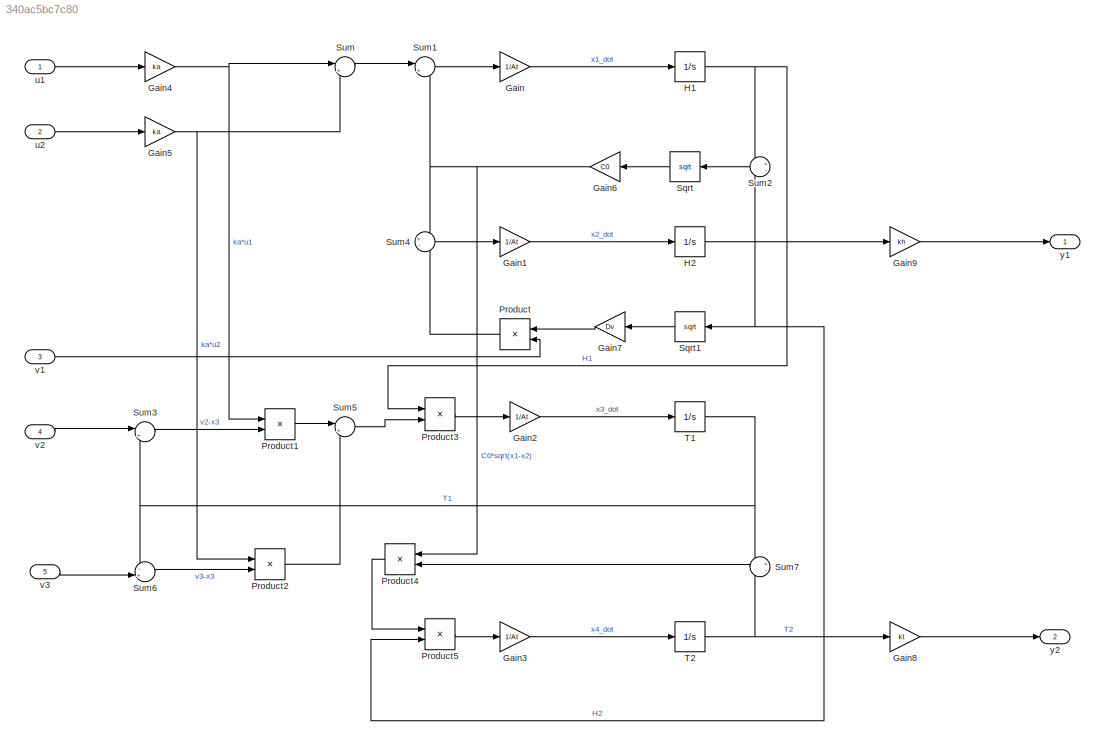
MODEL slx_340ac5bc7c80
KIND model
CONFIG AbsTol = auto
CONFIG EnableMultiTasking = off
CONFIG FixedStep = STEP_SIZE
CONFIG MaxStep = auto
CONFIG MinStep = auto
CONFIG RelTol = 1e-3
CONFIG SampleTimeConstraint = Unconstrained
CONFIG SolverName = ode4
CONFIG StartTime = 0.0
CONFIG StopTime = SIM_TIME
BLOCK [Gain] Gain
  Gain = 1/At
BLOCK [Gain] Gain1
  Gain = 1/At
BLOCK [Gain] Gain2
  Gain = 1/At
BLOCK [Gain] Gain3
  Gain = 1/At
BLOCK [Gain] Gain4
  Gain = ka
BLOCK [Gain] Gain5
  Gain = ka
BLOCK [Gain] Gain6
  Gain = C0
  NameLocation = top
BLOCK [Gain] Gain7
  Gain = Dv
  NameLocation = top
BLOCK [Gain] Gain8
  Gain = kt
BLOCK [Gain] Gain9
  Gain = kh
BLOCK [Integrator] H1
  InitialCondition = x0(1)
  LimitOutput = on
  LowerSaturationLimit = 0
  Ports = [1, 1]
  Priority = 1
BLOCK [Integrator] H2
  InitialCondition = x0(2)
  LimitOutput = on
  LowerSaturationLimit = 0
  Ports = [1, 1]
  Priority = 2
BLOCK [Product] Product
  NameLocation = top
  Ports = [2, 1]
BLOCK [Product] Product1
  Ports = [2, 1]
BLOCK [Product] Product2
  Ports = [2, 1]
BLOCK [Product] Product3
  Inputs = /*
  Ports = [2, 1]
BLOCK [Product] Product4
  NameLocation = top
  Ports = [2, 1]
BLOCK [Product] Product5
  Inputs = */
  Ports = [2, 1]
BLOCK [Sqrt] Sqrt
  NameLocation = top
BLOCK [Sqrt] Sqrt1
  NameLocation = top
BLOCK [Sum] Sum
  Inputs = |++
  Ports = [2, 1]
BLOCK [Sum] Sum1
  Inputs = |+-
  Ports = [2, 1]
BLOCK [Sum] Sum2
  Inputs = +-
  NameLocation = top
  Ports = [2, 1]
BLOCK [Sum] Sum3
  Inputs = |+-
  Ports = [2, 1]
BLOCK [Sum] Sum4
  Inputs = +-
  Ports = [2, 1]
BLOCK [Sum] Sum5
  Inputs = |++
  Ports = [2, 1]
BLOCK [Sum] Sum6
  Inputs = -+|
  Ports = [2, 1]
BLOCK [Sum] Sum7
  Inputs = +-
  NameLocation = top
  Ports = [2, 1]
BLOCK [Integrator] T1
  InitialCondition = x0(3)
  Ports = [1, 1]
  Priority = 3
BLOCK [Integrator] T2
  InitialCondition = x0(4)
  Ports = [1, 1]
  Priority = 4
BLOCK [Inport] u1
BLOCK [Inport] u2
  Port = 2
BLOCK [Inport] v1
  Port = 3
BLOCK [Inport] v2
  Port = 4
BLOCK [Inport] v3
  Port = 5
BLOCK [Outport] y1
BLOCK [Outport] y2
  Port = 2
LINE Gain1:1 -> H2:1
LINE Gain2:1 -> T1:1
LINE Gain3:1 -> T2:1
NET Gain4:1 -> Product1:1, Sum:1
NET Gain5:1 -> Product2:1, Sum:2
NET Gain6:1 -> Product4:1, Sum1:2, Sum4:1
LINE Gain7:1 -> Product:1
LINE Gain8:1 -> y2:1
LINE Gain9:1 -> y1:1
LINE Gain:1 -> H1:1
NET H1:1 -> Product3:1, Sum2:1
NET H2:1 -> Gain9:1, Product5:2, Sqrt1:1, Sum2:2
LINE Product1:1 -> Sum5:1
LINE Product2:1 -> Sum5:2
LINE Product3:1 -> Gain2:1
LINE Product4:1 -> Product5:1
LINE Product5:1 -> Gain3:1
LINE Product:1 -> Sum4:2
LINE Sqrt1:1 -> Gain7:1
LINE Sqrt:1 -> Gain6:1
LINE Sum1:1 -> Gain:1
LINE Sum2:1 -> Sqrt:1
LINE Sum3:1 -> Product1:2
LINE Sum4:1 -> Gain1:1
LINE Sum5:1 -> Product3:2
LINE Sum6:1 -> Product2:2
LINE Sum7:1 -> Product4:2
LINE Sum:1 -> Sum1:1
NET T1:1 -> Sum3:2, Sum6:1, Sum7:1
NET T2:1 -> Gain8:1, Sum7:2
LINE u1:1 -> Gain4:1
LINE u2:1 -> Gain5:1
LINE v1:1 -> Product:2
LINE v2:1 -> Sum3:1
LINE v3:1 -> Sum6:2
note: NET lines group one-source signal fan-out (src -> all destinations, sorted); 1:1 wires keep LINE
